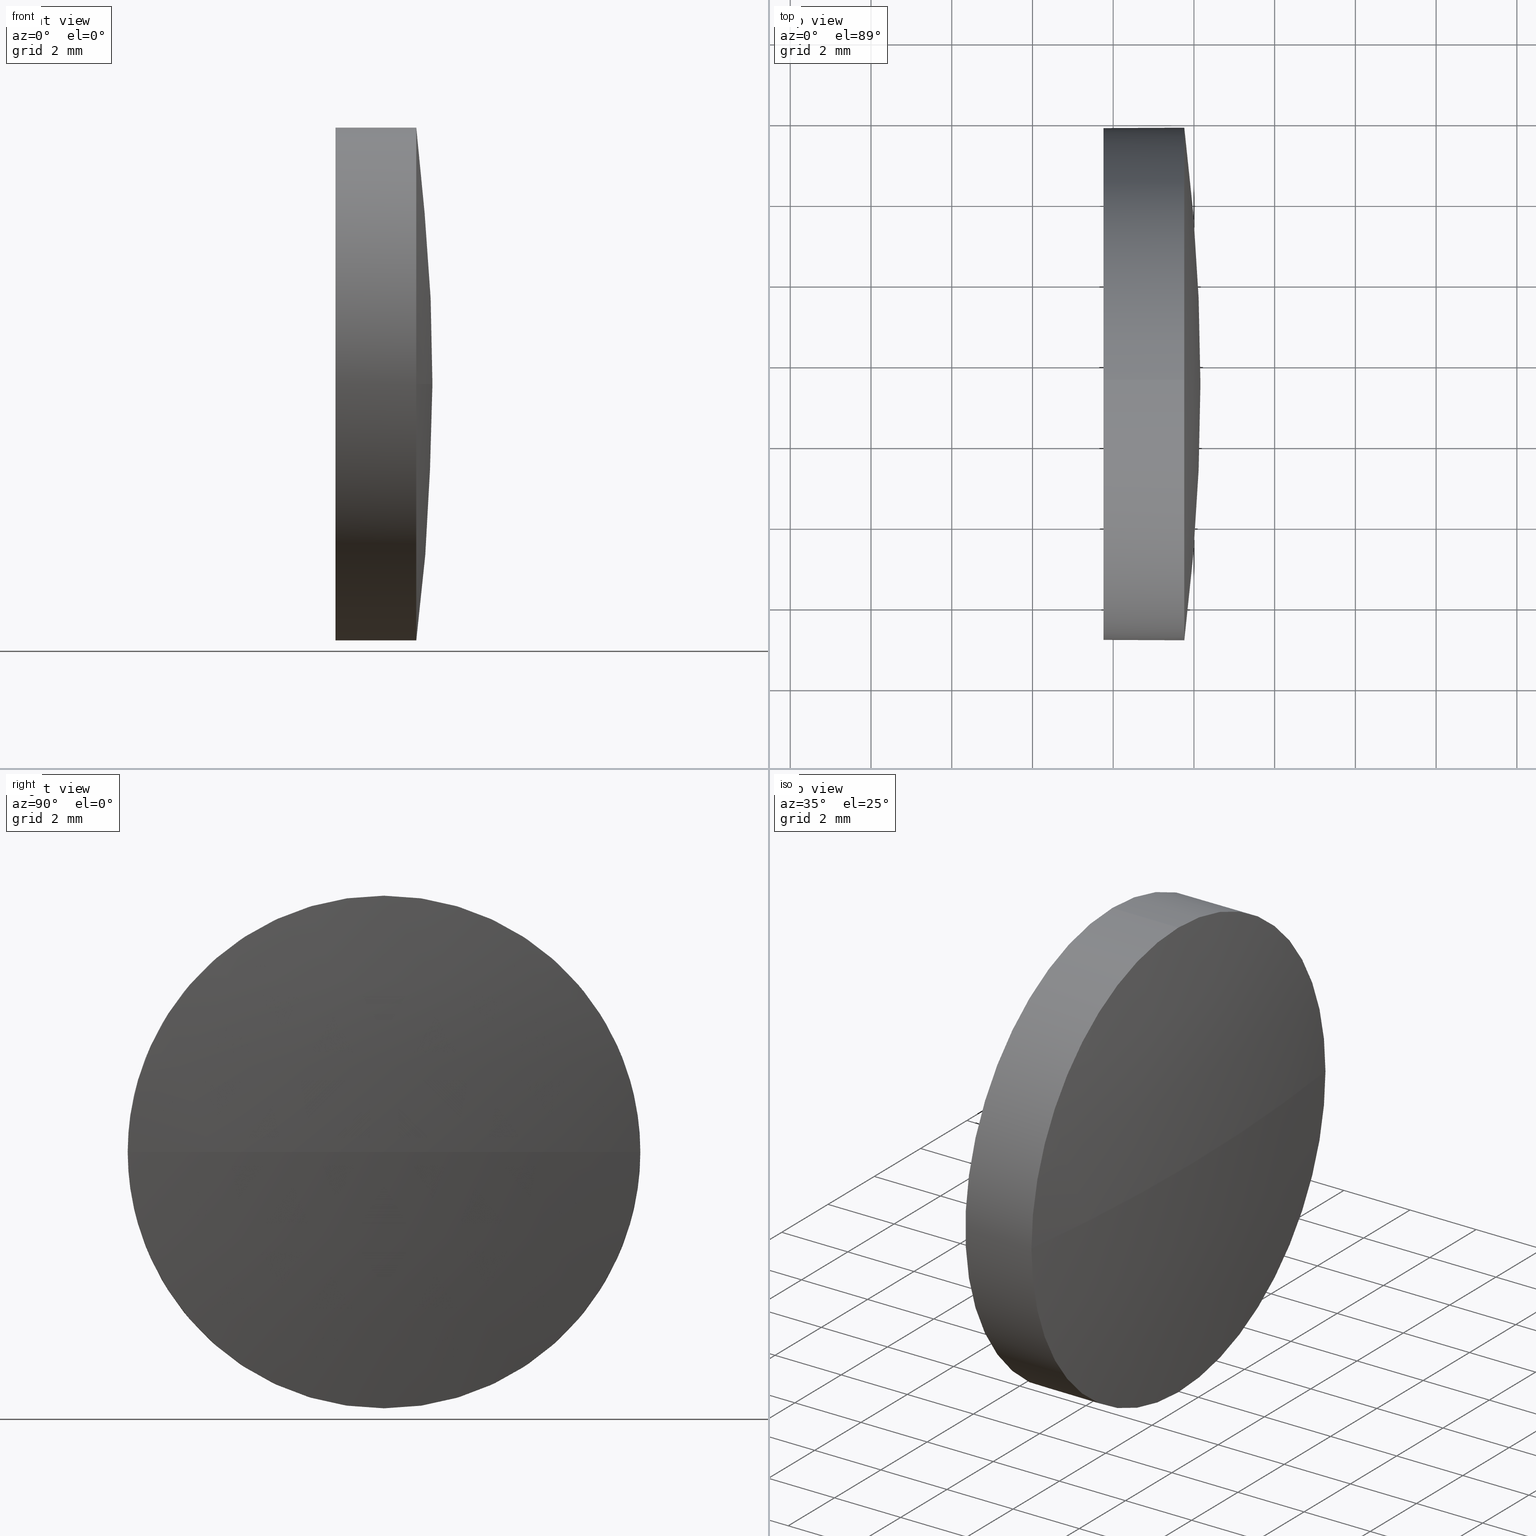
[diagram: canonical four-view strip — front | top / right | iso, engineering-drawing reading convention]
A machine part, canonical four-view strip (front | top / right | iso — engineering-drawing reading convention). The complete STEP part file that produces these views, byte-faithful:
ISO-10303-21;
HEADER;
FILE_DESCRIPTION (( 'STEP AP214' ),
    '1' );
FILE_NAME ('100466.STEP',
    '2019-06-11T01:44:24',
    ( '' ),
    ( '' ),
    'SwSTEP 2.0',
    'SolidWorks 2016',
    '' );
FILE_SCHEMA (( 'AUTOMOTIVE_DESIGN' ));
ENDSEC;

DATA;
#1 = ORIENTED_EDGE ( 'NONE', *, *, #145, .T. ) ;
#2 = CARTESIAN_POINT ( 'NONE',  ( 461.7612449843627500, 237.4846222433156100, -6.349999999999994300 ) ) ;
#3 = CARTESIAN_POINT ( 'NONE',  ( 459.7612449843627500, 237.4846222433156100, -6.349999999999994300 ) ) ;
#4 = CYLINDRICAL_SURFACE ( 'NONE', #51, 6.349999999999994300 ) ;
#5 = UNCERTAINTY_MEASURE_WITH_UNIT (LENGTH_MEASURE( 1.000000000000000100E-005 ), #105, 'distance_accuracy_value', 'NONE');
#6 = CLOSED_SHELL ( 'NONE', ( #63, #148, #116, #136, #92 ) ) ;
#7 = DIRECTION ( 'NONE',  ( -1.000000000000000000, -0.0000000000000000000, -0.0000000000000000000 ) ) ;
#8 =( GEOMETRIC_REPRESENTATION_CONTEXT ( 3 ) GLOBAL_UNCERTAINTY_ASSIGNED_CONTEXT ( ( #5 ) ) GLOBAL_UNIT_ASSIGNED_CONTEXT ( ( #105, #81, #65 ) ) REPRESENTATION_CONTEXT ( 'NONE', 'WORKASPACE' ) );
#9 = DIRECTION ( 'NONE',  ( 0.0000000000000000000, 0.0000000000000000000, 1.000000000000000000 ) ) ;
#10 = FACE_OUTER_BOUND ( 'NONE', #64, .T. ) ;
#11 = CARTESIAN_POINT ( 'NONE',  ( 457.5007138385082600, 237.4846222433156100, -6.349999999999994300 ) ) ;
#12 = DIRECTION ( 'NONE',  ( 0.0000000000000000000, 0.0000000000000000000, 1.000000000000000000 ) ) ;
#13 = CARTESIAN_POINT ( 'NONE',  ( 461.7612449843627500, 237.4846222433156100, 0.0000000000000000000 ) ) ;
#14 = DIRECTION ( 'NONE',  ( 0.0000000000000000000, 0.0000000000000000000, 1.000000000000000000 ) ) ;
#15 = ORIENTED_EDGE ( 'NONE', *, *, #70, .F. ) ;
#16 = DIRECTION ( 'NONE',  ( 0.0000000000000000000, 0.0000000000000000000, 1.000000000000000000 ) ) ;
#17 = EDGE_CURVE ( 'NONE', #155, #50, #71, .T. ) ;
#18 = CARTESIAN_POINT ( 'NONE',  ( 411.5581199843627500, 237.4846222433157500, 0.0000000000000000000 ) ) ;
#19 = PRESENTATION_LAYER_ASSIGNMENT (  '', '', ( #33 ) ) ;
#20 = ADVANCED_BREP_SHAPE_REPRESENTATION ( '100466', ( #112, #131 ), #8 ) ;
#21 = VERTEX_POINT ( 'NONE', #2 ) ;
#22 = PRODUCT_RELATED_PRODUCT_CATEGORY ( 'part', '', ( #38 ) ) ;
#23 = EDGE_CURVE ( 'NONE', #21, #50, #83, .T. ) ;
#24 =( NAMED_UNIT ( * ) SI_UNIT ( $, .STERADIAN. ) SOLID_ANGLE_UNIT ( ) );
#25 = CARTESIAN_POINT ( 'NONE',  ( 457.5007138385082600, 237.4846222433156100, 0.0000000000000000000 ) ) ;
#26 = COLOUR_RGB ( '',1.000000000000000000, 1.000000000000000000, 1.000000000000000000 ) ;
#27 = ORIENTED_EDGE ( 'NONE', *, *, #23, .F. ) ;
#28 = CARTESIAN_POINT ( 'NONE',  ( 459.7612449843627500, 237.4846222433156100, 0.0000000000000000000 ) ) ;
#29 = DIRECTION ( 'NONE',  ( -1.000000000000000000, -0.0000000000000000000, -0.0000000000000000000 ) ) ;
#30 = MECHANICAL_DESIGN_GEOMETRIC_PRESENTATION_REPRESENTATION (  '', ( #33 ), #55 ) ;
#31 = EDGE_LOOP ( 'NONE', ( #169, #139, #27, #69 ) ) ;
#32 = PRODUCT_DEFINITION_SHAPE ( 'NONE', 'NONE',  #166 ) ;
#33 = STYLED_ITEM ( 'NONE', ( #165 ), #20 ) ;
#34 = CYLINDRICAL_SURFACE ( 'NONE', #68, 6.349999999999994300 ) ;
#35 = DIRECTION ( 'NONE',  ( 0.0000000000000000000, 0.0000000000000000000, 1.000000000000000000 ) ) ;
#36 = VECTOR ( 'NONE', #66, 1000.000000000000000 ) ;
#37 = ORIENTED_EDGE ( 'NONE', *, *, #145, .F. ) ;
#38 = PRODUCT ( '100466', '100466', '', ( #60 ) ) ;
#39 = EDGE_LOOP ( 'NONE', ( #37, #157, #96, #142, #15 ) ) ;
#40 = DIRECTION ( 'NONE',  ( -1.000000000000000000, -0.0000000000000000000, -0.0000000000000000000 ) ) ;
#41 =( GEOMETRIC_REPRESENTATION_CONTEXT ( 3 ) GLOBAL_UNCERTAINTY_ASSIGNED_CONTEXT ( ( #48 ) ) GLOBAL_UNIT_ASSIGNED_CONTEXT ( ( #132, #147, #24 ) ) REPRESENTATION_CONTEXT ( 'NONE', 'WORKASPACE' ) );
#42 = DIRECTION ( 'NONE',  ( 0.0000000000000000000, 0.0000000000000000000, 1.000000000000000000 ) ) ;
#43 = CIRCLE ( 'NONE', #110, 6.349999999999994300 ) ;
#44 = EDGE_LOOP ( 'NONE', ( #111, #133, #186, #150 ) ) ;
#45 = DIRECTION ( 'NONE',  ( 0.0000000000000000000, 0.0000000000000000000, 1.000000000000000000 ) ) ;
#46 = FILL_AREA_STYLE ('',( #172 ) ) ;
#47 = DIRECTION ( 'NONE',  ( 0.0000000000000000000, -1.000000000000000000, 0.0000000000000000000 ) ) ;
#48 = UNCERTAINTY_MEASURE_WITH_UNIT (LENGTH_MEASURE( 1.000000000000000100E-005 ), #132, 'distance_accuracy_value', 'NONE');
#49 = CARTESIAN_POINT ( 'NONE',  ( 461.7612449843627500, 237.4846222433156100, 0.0000000000000000000 ) ) ;
#50 = VERTEX_POINT ( 'NONE', #54 ) ;
#51 = AXIS2_PLACEMENT_3D ( 'NONE', #25, #7, #76 ) ;
#52 = FACE_OUTER_BOUND ( 'NONE', #130, .T. ) ;
#53 = ORIENTED_EDGE ( 'NONE', *, *, #158, .F. ) ;
#54 = CARTESIAN_POINT ( 'NONE',  ( 461.7612449843627500, 231.1346222433157000, 0.0000000000000000000 ) ) ;
#55 =( GEOMETRIC_REPRESENTATION_CONTEXT ( 3 ) GLOBAL_UNCERTAINTY_ASSIGNED_CONTEXT ( ( #84 ) ) GLOBAL_UNIT_ASSIGNED_CONTEXT ( ( #180, #102, #161 ) ) REPRESENTATION_CONTEXT ( 'NONE', 'WORKASPACE' ) );
#56 = CIRCLE ( 'NONE', #175, 6.349999999999994300 ) ;
#57 = VERTEX_POINT ( 'NONE', #109 ) ;
#58 = AXIS2_PLACEMENT_3D ( 'NONE', #18, #85, #127 ) ;
#59 = CARTESIAN_POINT ( 'NONE',  ( 461.7612449843627500, 237.4846222433156100, 6.349999999999994300 ) ) ;
#60 = PRODUCT_CONTEXT ( 'NONE', #183, 'mechanical' ) ;
#61 = CIRCLE ( 'NONE', #86, 6.349999999999994300 ) ;
#62 = DIRECTION ( 'NONE',  ( -1.000000000000000000, -0.0000000000000000000, -0.0000000000000000000 ) ) ;
#63 = ADVANCED_FACE ( 'NONE', ( #10 ), #4, .T. ) ;
#64 = EDGE_LOOP ( 'NONE', ( #126, #1, #177, #53, #87 ) ) ;
#65 =( NAMED_UNIT ( * ) SI_UNIT ( $, .STERADIAN. ) SOLID_ANGLE_UNIT ( ) );
#66 = DIRECTION ( 'NONE',  ( -1.000000000000000000, -0.0000000000000000000, -0.0000000000000000000 ) ) ;
#67 = VECTOR ( 'NONE', #162, 1000.000000000000000 ) ;
#68 = AXIS2_PLACEMENT_3D ( 'NONE', #103, #40, #42 ) ;
#69 = ORIENTED_EDGE ( 'NONE', *, *, #101, .F. ) ;
#70 = EDGE_CURVE ( 'NONE', #72, #163, #56, .T. ) ;
#71 = CIRCLE ( 'NONE', #58, 50.60312500000002700 ) ;
#72 = VERTEX_POINT ( 'NONE', #3 ) ;
#73 = CIRCLE ( 'NONE', #124, 50.60312499999999900 ) ;
#74 = CARTESIAN_POINT ( 'NONE',  ( 462.1612449843627800, 237.4846222433157500, 0.0000000000000000000 ) ) ;
#75 = APPLICATION_CONTEXT ( 'automotive_design' ) ;
#76 = DIRECTION ( 'NONE',  ( 0.0000000000000000000, 0.0000000000000000000, 1.000000000000000000 ) ) ;
#77 = PRESENTATION_LAYER_ASSIGNMENT (  '', '', ( #156 ) ) ;
#78 = DIRECTION ( 'NONE',  ( 1.000000000000000000, 0.0000000000000000000, 0.0000000000000000000 ) ) ;
#79 = PLANE ( 'NONE',  #97 ) ;
#80 = VERTEX_POINT ( 'NONE', #59 ) ;
#81 =( NAMED_UNIT ( * ) PLANE_ANGLE_UNIT ( ) SI_UNIT ( $, .RADIAN. ) );
#82 = PRODUCT_DEFINITION_CONTEXT ( 'detailed design', #75, 'design' ) ;
#83 = CIRCLE ( 'NONE', #106, 6.349999999999994300 ) ;
#84 = UNCERTAINTY_MEASURE_WITH_UNIT (LENGTH_MEASURE( 1.000000000000000100E-005 ), #180, 'distance_accuracy_value', 'NONE');
#85 = DIRECTION ( 'NONE',  ( 0.0000000000000000000, 0.0000000000000000000, -1.000000000000000000 ) ) ;
#86 = AXIS2_PLACEMENT_3D ( 'NONE', #13, #171, #120 ) ;
#87 = ORIENTED_EDGE ( 'NONE', *, *, #167, .T. ) ;
#88 = DIRECTION ( 'NONE',  ( 0.0000000000000000000, 0.0000000000000000000, 1.000000000000000000 ) ) ;
#89 = DIRECTION ( 'NONE',  ( -1.000000000000000000, -0.0000000000000000000, -0.0000000000000000000 ) ) ;
#90 = LINE ( 'NONE', #159, #36 ) ;
#91 = CARTESIAN_POINT ( 'NONE',  ( 411.5581199843627500, 237.4846222433157500, 0.0000000000000000000 ) ) ;
#92 = ADVANCED_FACE ( 'NONE', ( #52 ), #79, .F. ) ;
#93 = DIRECTION ( 'NONE',  ( 0.0000000000000000000, 0.0000000000000000000, 1.000000000000000000 ) ) ;
#94 = CARTESIAN_POINT ( 'NONE',  ( 0.0000000000000000000, 0.0000000000000000000, 0.0000000000000000000 ) ) ;
#95 = EDGE_CURVE ( 'NONE', #163, #72, #43, .T. ) ;
#96 = ORIENTED_EDGE ( 'NONE', *, *, #141, .T. ) ;
#97 = AXIS2_PLACEMENT_3D ( 'NONE', #100, #78, #121 ) ;
#98 = CARTESIAN_POINT ( 'NONE',  ( 461.7612449843627500, 237.4846222433156100, 0.0000000000000000000 ) ) ;
#99 = ORIENTED_EDGE ( 'NONE', *, *, #70, .T. ) ;
#100 = CARTESIAN_POINT ( 'NONE',  ( 459.7612449843627500, 237.4846222433156100, 0.0000000000000000000 ) ) ;
#101 = EDGE_CURVE ( 'NONE', #57, #21, #107, .T. ) ;
#102 =( NAMED_UNIT ( * ) PLANE_ANGLE_UNIT ( ) SI_UNIT ( $, .RADIAN. ) );
#103 = CARTESIAN_POINT ( 'NONE',  ( 457.5007138385082600, 237.4846222433156100, 0.0000000000000000000 ) ) ;
#104 = FACE_OUTER_BOUND ( 'NONE', #39, .T. ) ;
#105 =( LENGTH_UNIT ( ) NAMED_UNIT ( * ) SI_UNIT ( .MILLI., .METRE. ) );
#106 = AXIS2_PLACEMENT_3D ( 'NONE', #98, #128, #35 ) ;
#107 = CIRCLE ( 'NONE', #114, 6.349999999999994300 ) ;
#108 = SPHERICAL_SURFACE ( 'NONE', #168, 50.60312500000001300 ) ;
#109 = CARTESIAN_POINT ( 'NONE',  ( 461.7612449843627500, 243.8346222433156600, 7.776507174585572800E-016 ) ) ;
#110 = AXIS2_PLACEMENT_3D ( 'NONE', #134, #170, #93 ) ;
#111 = ORIENTED_EDGE ( 'NONE', *, *, #17, .F. ) ;
#112 = MANIFOLD_SOLID_BREP ( '��ת1', #6 ) ;
#113 = SURFACE_STYLE_FILL_AREA ( #46 ) ;
#114 = AXIS2_PLACEMENT_3D ( 'NONE', #178, #89, #88 ) ;
#115 = SURFACE_SIDE_STYLE ('',( #176 ) ) ;
#116 = ADVANCED_FACE ( 'NONE', ( #129 ), #108, .T. ) ;
#117 = FILL_AREA_STYLE_COLOUR ( '', #26 ) ;
#118 = FACE_OUTER_BOUND ( 'NONE', #44, .T. ) ;
#119 = DIRECTION ( 'NONE',  ( 1.000000000000000000, 0.0000000000000000000, 0.0000000000000000000 ) ) ;
#120 = DIRECTION ( 'NONE',  ( 0.0000000000000000000, 0.0000000000000000000, 1.000000000000000000 ) ) ;
#121 = DIRECTION ( 'NONE',  ( 0.0000000000000000000, 0.0000000000000000000, -1.000000000000000000 ) ) ;
#122 = CARTESIAN_POINT ( 'NONE',  ( 411.5581199843627500, 237.4846222433157500, 0.0000000000000000000 ) ) ;
#123 = COLOUR_RGB ( '',1.000000000000000000, 1.000000000000000000, 1.000000000000000000 ) ;
#124 = AXIS2_PLACEMENT_3D ( 'NONE', #122, #185, #137 ) ;
#125 = LINE ( 'NONE', #11, #67 ) ;
#126 = ORIENTED_EDGE ( 'NONE', *, *, #101, .T. ) ;
#127 = DIRECTION ( 'NONE',  ( -1.000000000000000000, 0.0000000000000000000, 0.0000000000000000000 ) ) ;
#128 = DIRECTION ( 'NONE',  ( -1.000000000000000000, -0.0000000000000000000, -0.0000000000000000000 ) ) ;
#129 = FACE_OUTER_BOUND ( 'NONE', #31, .T. ) ;
#130 = EDGE_LOOP ( 'NONE', ( #174, #99 ) ) ;
#131 = AXIS2_PLACEMENT_3D ( 'NONE', #94, #12, #119 ) ;
#132 =( LENGTH_UNIT ( ) NAMED_UNIT ( * ) SI_UNIT ( .MILLI., .METRE. ) );
#133 = ORIENTED_EDGE ( 'NONE', *, *, #173, .T. ) ;
#134 = CARTESIAN_POINT ( 'NONE',  ( 459.7612449843627500, 237.4846222433156100, 0.0000000000000000000 ) ) ;
#135 = APPLICATION_PROTOCOL_DEFINITION ( 'draft international standard', 'automotive_design', 1998, #75 ) ;
#136 = ADVANCED_FACE ( 'NONE', ( #104 ), #34, .T. ) ;
#137 = DIRECTION ( 'NONE',  ( 0.0000000000000000000, -1.000000000000000000, -1.224646799147353700E-016 ) ) ;
#138 = AXIS2_PLACEMENT_3D ( 'NONE', #49, #29, #16 ) ;
#139 = ORIENTED_EDGE ( 'NONE', *, *, #17, .T. ) ;
#140 = PRODUCT_DEFINITION_FORMATION_WITH_SPECIFIED_SOURCE ( '�κ�', '', #38, .NOT_KNOWN. ) ;
#141 = EDGE_CURVE ( 'NONE', #50, #80, #61, .T. ) ;
#142 = ORIENTED_EDGE ( 'NONE', *, *, #158, .T. ) ;
#143 = AXIS2_PLACEMENT_3D ( 'NONE', #182, #45, #184 ) ;
#144 = SHAPE_DEFINITION_REPRESENTATION ( #32, #20 ) ;
#145 = EDGE_CURVE ( 'NONE', #21, #72, #125, .T. ) ;
#146 = APPLICATION_PROTOCOL_DEFINITION ( 'draft international standard', 'automotive_design', 1998, #183 ) ;
#147 =( NAMED_UNIT ( * ) PLANE_ANGLE_UNIT ( ) SI_UNIT ( $, .RADIAN. ) );
#148 = ADVANCED_FACE ( 'NONE', ( #118 ), #153, .T. ) ;
#149 = SURFACE_STYLE_USAGE ( .BOTH. , #151 ) ;
#150 = ORIENTED_EDGE ( 'NONE', *, *, #141, .F. ) ;
#151 = SURFACE_SIDE_STYLE ('',( #113 ) ) ;
#152 = CARTESIAN_POINT ( 'NONE',  ( 459.7612449843627500, 237.4846222433156100, 6.349999999999994300 ) ) ;
#153 = SPHERICAL_SURFACE ( 'NONE', #143, 50.60312500000001300 ) ;
#154 = PRESENTATION_STYLE_ASSIGNMENT (( #160 ) ) ;
#155 = VERTEX_POINT ( 'NONE', #74 ) ;
#156 = STYLED_ITEM ( 'NONE', ( #154 ), #112 ) ;
#157 = ORIENTED_EDGE ( 'NONE', *, *, #23, .T. ) ;
#158 = EDGE_CURVE ( 'NONE', #80, #163, #90, .T. ) ;
#159 = CARTESIAN_POINT ( 'NONE',  ( 457.5007138385082600, 237.4846222433156100, 6.349999999999994300 ) ) ;
#160 = SURFACE_STYLE_USAGE ( .BOTH. , #115 ) ;
#161 =( NAMED_UNIT ( * ) SI_UNIT ( $, .STERADIAN. ) SOLID_ANGLE_UNIT ( ) );
#162 = DIRECTION ( 'NONE',  ( -1.000000000000000000, -0.0000000000000000000, -0.0000000000000000000 ) ) ;
#163 = VERTEX_POINT ( 'NONE', #152 ) ;
#164 = MECHANICAL_DESIGN_GEOMETRIC_PRESENTATION_REPRESENTATION (  '', ( #156 ), #41 ) ;
#165 = PRESENTATION_STYLE_ASSIGNMENT (( #149 ) ) ;
#166 = PRODUCT_DEFINITION ( 'δ֪', '', #140, #82 ) ;
#167 = EDGE_CURVE ( 'NONE', #80, #57, #181, .T. ) ;
#168 = AXIS2_PLACEMENT_3D ( 'NONE', #91, #9, #47 ) ;
#169 = ORIENTED_EDGE ( 'NONE', *, *, #173, .F. ) ;
#170 = DIRECTION ( 'NONE',  ( -1.000000000000000000, -0.0000000000000000000, -0.0000000000000000000 ) ) ;
#171 = DIRECTION ( 'NONE',  ( -1.000000000000000000, -0.0000000000000000000, -0.0000000000000000000 ) ) ;
#172 = FILL_AREA_STYLE_COLOUR ( '', #123 ) ;
#173 = EDGE_CURVE ( 'NONE', #155, #57, #73, .T. ) ;
#174 = ORIENTED_EDGE ( 'NONE', *, *, #95, .T. ) ;
#175 = AXIS2_PLACEMENT_3D ( 'NONE', #28, #62, #14 ) ;
#176 = SURFACE_STYLE_FILL_AREA ( #179 ) ;
#177 = ORIENTED_EDGE ( 'NONE', *, *, #95, .F. ) ;
#178 = CARTESIAN_POINT ( 'NONE',  ( 461.7612449843627500, 237.4846222433156100, 0.0000000000000000000 ) ) ;
#179 = FILL_AREA_STYLE ('',( #117 ) ) ;
#180 =( LENGTH_UNIT ( ) NAMED_UNIT ( * ) SI_UNIT ( .MILLI., .METRE. ) );
#181 = CIRCLE ( 'NONE', #138, 6.349999999999994300 ) ;
#182 = CARTESIAN_POINT ( 'NONE',  ( 411.5581199843627500, 237.4846222433157500, 0.0000000000000000000 ) ) ;
#183 = APPLICATION_CONTEXT ( 'automotive_design' ) ;
#184 = DIRECTION ( 'NONE',  ( 0.0000000000000000000, -1.000000000000000000, 0.0000000000000000000 ) ) ;
#185 = DIRECTION ( 'NONE',  ( 0.0000000000000000000, -1.224646799147353200E-016, 1.000000000000000000 ) ) ;
#186 = ORIENTED_EDGE ( 'NONE', *, *, #167, .F. ) ;
ENDSEC;
END-ISO-10303-21;
